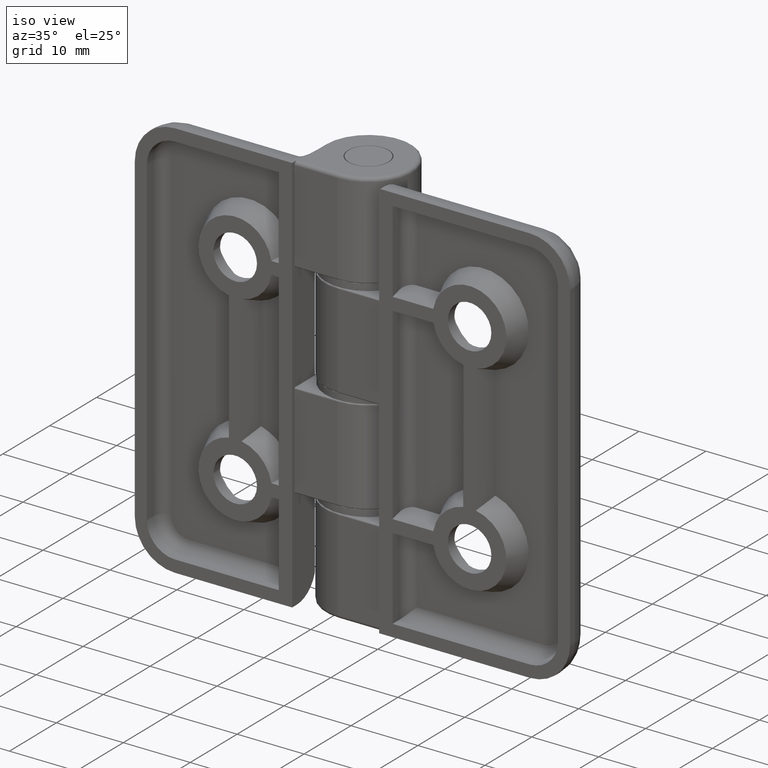
[diagram: clean part render]
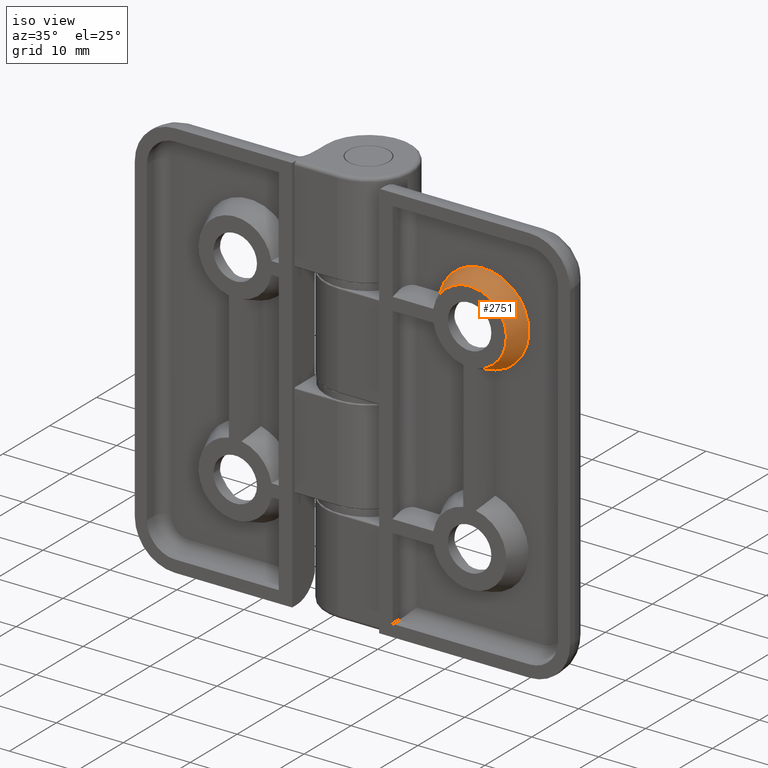
[diagram: same view with one face highlighted and labeled with its STEP entity id]
A machine part, iso view. The second image highlights one B-rep face of the part: STEP entity #2751.
In plain terms, the highlighted conical surface has half-angle 22.62 deg.
Its self-contained STEP definition (entity closure, byte-faithful):
#271=CIRCLE('',#2990,5.5);
#296=CIRCLE('',#3047,6.75);
#353=(
BOUNDED_CURVE()
B_SPLINE_CURVE(2,(#5194,#5195,#5196),.UNSPECIFIED.,.F.,.F.)
B_SPLINE_CURVE_WITH_KNOTS((3,3),(0.,0.329529067953311),.UNSPECIFIED.)
CURVE()
GEOMETRIC_REPRESENTATION_ITEM()
RATIONAL_B_SPLINE_CURVE((1.,1.00323084874036,1.))
REPRESENTATION_ITEM('')
);
#356=(
BOUNDED_CURVE()
B_SPLINE_CURVE(2,(#5210,#5211,#5212),.UNSPECIFIED.,.F.,.F.)
B_SPLINE_CURVE_WITH_KNOTS((3,3),(0.,0.329529067953311),.UNSPECIFIED.)
CURVE()
GEOMETRIC_REPRESENTATION_ITEM()
RATIONAL_B_SPLINE_CURVE((1.,1.00323084873968,1.))
REPRESENTATION_ITEM('')
);
#366=CONICAL_SURFACE('',#3046,6.75,0.394791119699762);
#481=FACE_OUTER_BOUND('',#672,.T.);
#672=EDGE_LOOP('',(#2337,#2338,#2339,#2340));
#1292=VERTEX_POINT('',#4908);
#1293=VERTEX_POINT('',#4910);
#1335=VERTEX_POINT('',#5193);
#1338=VERTEX_POINT('',#5209);
#1617=EDGE_CURVE('',#1292,#1293,#271,.T.);
#1676=EDGE_CURVE('',#1335,#1293,#353,.T.);
#1681=EDGE_CURVE('',#1292,#1338,#356,.T.);
#1711=EDGE_CURVE('',#1335,#1338,#296,.T.);
#2337=ORIENTED_EDGE('',*,*,#1676,.T.);
#2338=ORIENTED_EDGE('',*,*,#1617,.F.);
#2339=ORIENTED_EDGE('',*,*,#1681,.T.);
#2340=ORIENTED_EDGE('',*,*,#1711,.F.);
#2751=ADVANCED_FACE('',(#481),#366,.T.);
#2990=AXIS2_PLACEMENT_3D('',#4911,#3616,#3617);
#3046=AXIS2_PLACEMENT_3D('',#5275,#3776,#3777);
#3047=AXIS2_PLACEMENT_3D('',#5276,#3778,#3779);
#3616=DIRECTION('center_axis',(3.11641550771974E-16,-1.,0.));
#3617=DIRECTION('ref_axis',(-1.,-3.11641550771974E-16,0.));
#3776=DIRECTION('center_axis',(-4.44089209850063E-16,1.,0.));
#3777=DIRECTION('ref_axis',(-1.,-4.44089209850063E-16,0.));
#3778=DIRECTION('center_axis',(-4.44089209850063E-16,1.,0.));
#3779=DIRECTION('ref_axis',(-1.,-4.44089209850063E-16,0.));
#4908=CARTESIAN_POINT('',(-20.9461524227066,-7.00000000000001,-9.58199339304515));
#4910=CARTESIAN_POINT('',(-14.5819933930452,-7.00000000000001,-15.9461524227066));
#4911=CARTESIAN_POINT('Origin',(-20.,-7.00000000000001,-15.));
#5193=CARTESIAN_POINT('',(-13.4807975947973,-4.,-16.75));
#5194=CARTESIAN_POINT('Ctrl Pts',(-13.4807975947974,-4.,-16.75));
#5195=CARTESIAN_POINT('Ctrl Pts',(-14.0697767047868,-5.63837352564536,-16.3109991369028));
#5196=CARTESIAN_POINT('Ctrl Pts',(-14.5819933930452,-7.00000000000001,-15.9461524227066));
#5209=CARTESIAN_POINT('',(-21.75,-4.00000000000001,-8.48079759479735));
#5210=CARTESIAN_POINT('Ctrl Pts',(-20.9461524227066,-7.00000000000001,-9.58199339304515));
#5211=CARTESIAN_POINT('Ctrl Pts',(-21.3109991369024,-5.63837352564669,-9.06977670478731));
#5212=CARTESIAN_POINT('Ctrl Pts',(-21.75,-4.,-8.48079759479735));
#5275=CARTESIAN_POINT('Origin',(-20.,-4.00000000000001,-15.));
#5276=CARTESIAN_POINT('Origin',(-20.,-4.00000000000001,-15.));